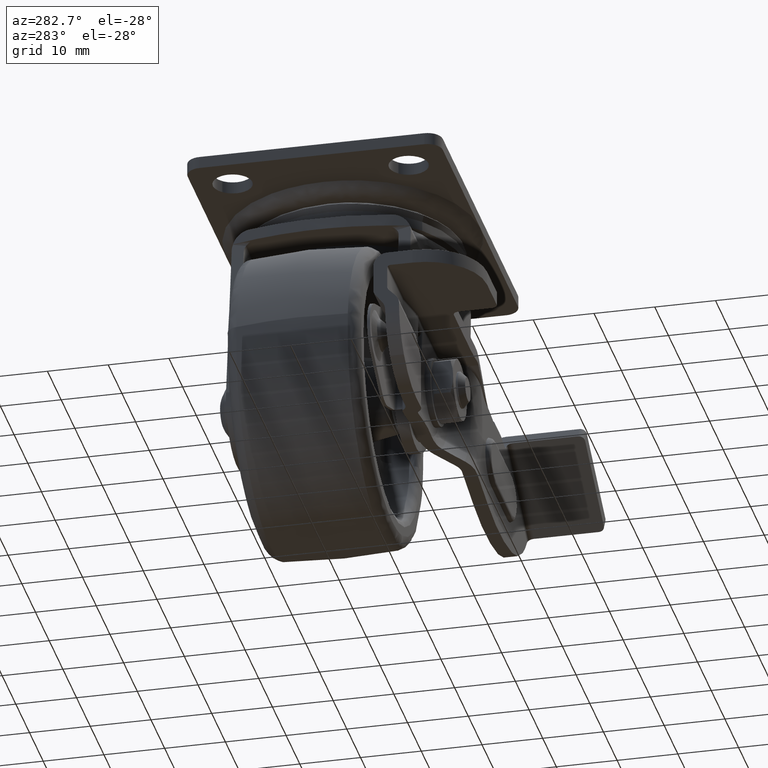
[diagram: clean part render]
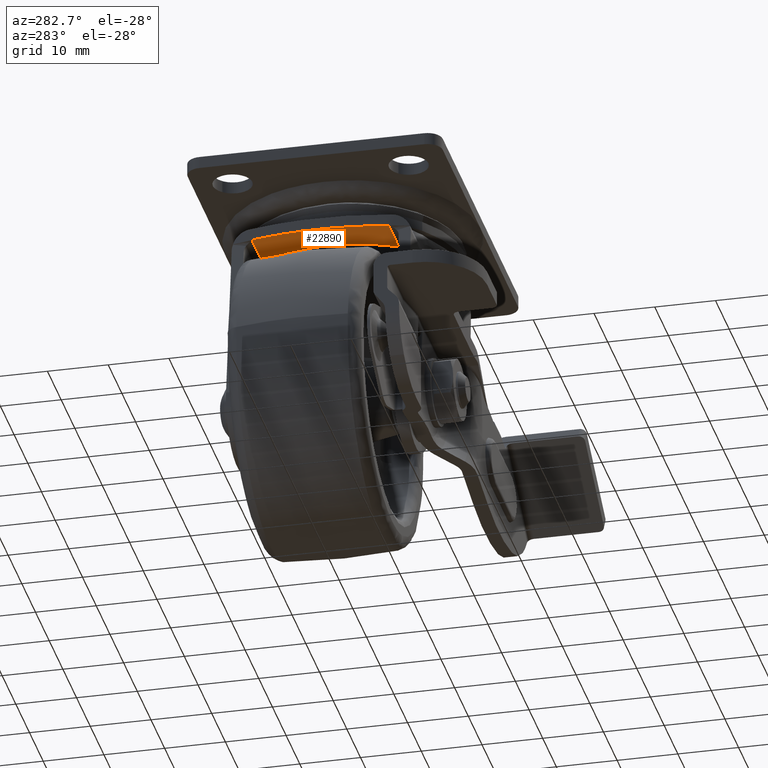
[diagram: same view with one face highlighted and labeled with its STEP entity id]
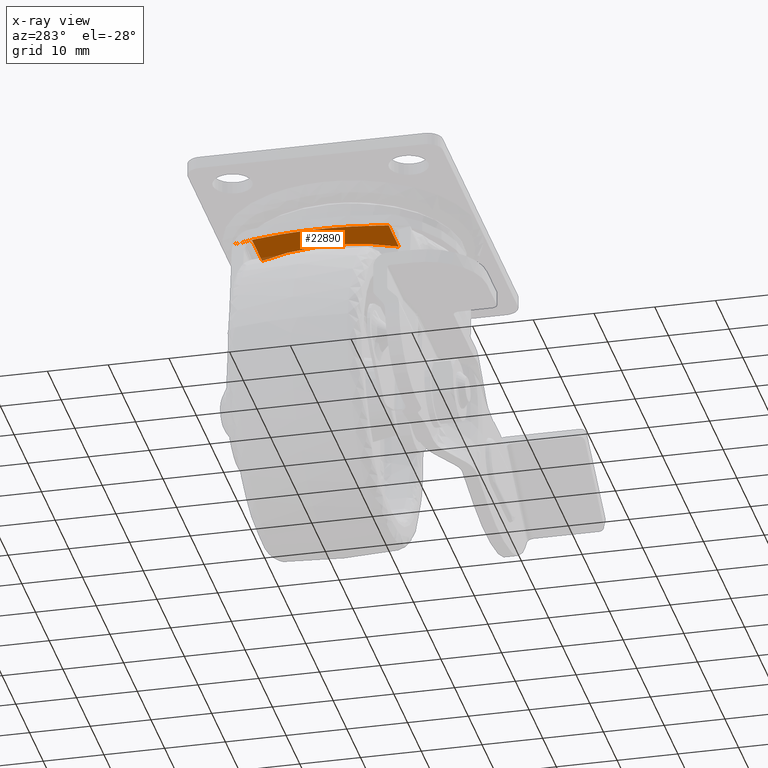
[diagram: x-ray of the same camera — body ghosted, the highlighted face saturated]
A machine part, auxiliary view. The second image highlights one B-rep face of the part: STEP entity #22890.
The next image is the same camera in x-ray: the body ghosted, the highlighted face saturated — about 1% of this face is hidden behind the body in this view.
In plain terms, the highlighted face is a freeform B-spline surface patch.
Its self-contained STEP definition (entity closure, byte-faithful):
#20269=CARTESIAN_POINT('',(-22.924576000856248,-14.581906124942041,-12.717472000000100));
#20270=VERTEX_POINT('',#20269);
#20298=CARTESIAN_POINT('',(-22.913844249973199,-14.581906124942041,-12.717472000000100));
#20299=VERTEX_POINT('',#20298);
#20300=CARTESIAN_POINT('',(-22.913844249973199,-14.581906124942041,-12.717472000000100));
#20301=CARTESIAN_POINT('',(-22.924576000856248,-14.581906124942041,-12.717472000000100));
#20302=QUASI_UNIFORM_CURVE('',1,(#20300,#20301),.UNSPECIFIED.,.F.,.U.);
#20303=EDGE_CURVE('',#20299,#20270,#20302,.T.);
#21128=CARTESIAN_POINT('',(-22.924576000856248,14.581906124942041,-12.717472000000100));
#21129=VERTEX_POINT('',#21128);
#21179=CARTESIAN_POINT('',(-22.913844297616201,14.581906124942041,-12.717472000000100));
#21180=VERTEX_POINT('',#21179);
#21189=CARTESIAN_POINT('',(-22.924576000856248,14.581906124942041,-12.717472000000100));
#21190=CARTESIAN_POINT('',(-22.913844297616201,14.581906124942041,-12.717472000000100));
#21191=QUASI_UNIFORM_CURVE('',1,(#21189,#21190),.UNSPECIFIED.,.F.,.U.);
#21192=EDGE_CURVE('',#21129,#21180,#21191,.T.);
#21290=CARTESIAN_POINT('',(-23.299805258138289,-12.917692562568950,-12.717472000000100));
#21291=VERTEX_POINT('',#21290);
#21292=CARTESIAN_POINT('',(-23.299805258138289,-12.917692562568950,-12.717472000000100));
#21293=CARTESIAN_POINT('',(-22.913844249973199,-14.581906124942041,-12.717472000000100));
#21294=QUASI_UNIFORM_CURVE('',1,(#21292,#21293),.UNSPECIFIED.,.F.,.U.);
#21295=EDGE_CURVE('',#21291,#20299,#21294,.T.);
#21297=CARTESIAN_POINT('',(-23.685766266303400,-11.253479000195860,-12.717472000000100));
#21298=VERTEX_POINT('',#21297);
#21299=CARTESIAN_POINT('',(-23.685766266303400,-11.253479000195860,-12.717472000000100));
#21300=CARTESIAN_POINT('',(-23.299805258138289,-12.917692562568950,-12.717472000000100));
#21301=QUASI_UNIFORM_CURVE('',1,(#21299,#21300),.UNSPECIFIED.,.F.,.U.);
#21302=EDGE_CURVE('',#21298,#21291,#21301,.T.);
#21355=CARTESIAN_POINT('',(-23.299805767906669,12.917692562568970,-12.717472000000100));
#21356=VERTEX_POINT('',#21355);
#21357=CARTESIAN_POINT('',(-23.685767238197151,11.253479000195860,-12.717472000000100));
#21358=VERTEX_POINT('',#21357);
#21359=CARTESIAN_POINT('',(-23.299805767906669,12.917692562568970,-12.717472000000100));
#21360=CARTESIAN_POINT('',(-23.685767238197151,11.253479000195860,-12.717472000000100));
#21361=QUASI_UNIFORM_CURVE('',1,(#21359,#21360),.UNSPECIFIED.,.F.,.U.);
#21362=EDGE_CURVE('',#21356,#21358,#21361,.T.);
#21364=CARTESIAN_POINT('',(-22.913844297616201,14.581906124942041,-12.717472000000100));
#21365=CARTESIAN_POINT('',(-23.299805767906669,12.917692562568970,-12.717472000000100));
#21366=QUASI_UNIFORM_CURVE('',1,(#21364,#21365),.UNSPECIFIED.,.F.,.U.);
#21367=EDGE_CURVE('',#21180,#21356,#21366,.T.);
#21420=CARTESIAN_POINT('',(-22.924576000856248,14.581906124942041,-12.717472000000100));
#21421=CARTESIAN_POINT('',(-23.681397323948449,11.995969520370060,-12.717472000000150));
#21422=CARTESIAN_POINT('',(-24.648302623718010,7.386103298831628,-12.717472000000020));
#21423=CARTESIAN_POINT('',(-25.136300935295029,0.540540975320678,-12.717472000000180));
#21424=CARTESIAN_POINT('',(-24.785513146962948,-6.624180825334513,-12.717472000000040));
#21425=CARTESIAN_POINT('',(-23.767969826724912,-11.700447842534500,-12.717472000000059));
#21426=CARTESIAN_POINT('',(-22.924576000856248,-14.581906124942041,-12.717472000000100));
#21427=B_SPLINE_CURVE_WITH_KNOTS('',3,(#21420,#21421,#21422,#21423,#21424,#21425,#21426),.UNSPECIFIED.,.F.,.U.,(4,1,1,1,4),(8.050989E-009,8.083203779111965,14.087870982565621,20.554427403777130,29.561430106047251),.UNSPECIFIED.);
#21428=EDGE_CURVE('',#21129,#20270,#21427,.T.);
#21469=CARTESIAN_POINT('',(-16.363739870272699,-11.253479000195860,-12.717472000000100));
#21470=VERTEX_POINT('',#21469);
#21471=CARTESIAN_POINT('',(-16.363739870272699,-11.253479000195860,-12.717472000000100));
#21472=CARTESIAN_POINT('',(-23.685766266303400,-11.253479000195860,-12.717472000000100));
#21473=QUASI_UNIFORM_CURVE('',1,(#21471,#21472),.UNSPECIFIED.,.F.,.U.);
#21474=EDGE_CURVE('',#21470,#21298,#21473,.T.);
#22216=CARTESIAN_POINT('',(-16.363739870272699,11.253479000195860,-12.717472000000100));
#22217=VERTEX_POINT('',#22216);
#22279=CARTESIAN_POINT('',(-23.685767238197151,11.253479000195860,-12.717472000000100));
#22280=CARTESIAN_POINT('',(-16.363739870272699,11.253479000195860,-12.717472000000100));
#22281=QUASI_UNIFORM_CURVE('',1,(#22279,#22280),.UNSPECIFIED.,.F.,.U.);
#22282=EDGE_CURVE('',#21358,#22217,#22281,.T.);
#22307=CARTESIAN_POINT('',(-16.363739870272699,11.253479000195860,-12.717472000000100));
#22308=CARTESIAN_POINT('',(-17.028269454164661,10.016423811669130,-12.717472000000130));
#22309=CARTESIAN_POINT('',(-18.064838133450159,7.593209400033850,-12.717472000000051));
#22310=CARTESIAN_POINT('',(-18.977106524388638,3.844804944288280,-12.717472000000180));
#22311=CARTESIAN_POINT('',(-19.308775648840570,-0.060193657636708,-12.717471999999971));
#22312=CARTESIAN_POINT('',(-18.987111091725161,-3.848068780630794,-12.717472000000180));
#22313=CARTESIAN_POINT('',(-18.016599502220082,-7.705907893048972,-12.717472000000010));
#22314=CARTESIAN_POINT('',(-17.028268214404392,-10.016424329870050,-12.717472000000210));
#22315=CARTESIAN_POINT('',(-16.363739870272699,-11.253479000195860,-12.717472000000100));
#22316=B_SPLINE_CURVE_WITH_KNOTS('',3,(#22307,#22308,#22309,#22310,#22311,#22312,#22313,#22314,#22315),.UNSPECIFIED.,.F.,.U.,(4,1,1,1,1,1,4),(0.000000030597676,4.212715975386661,7.875965671243709,11.539209893288870,15.935068089742860,19.231978992364859,23.444698043645310),.UNSPECIFIED.);
#22317=EDGE_CURVE('',#22217,#21470,#22316,.T.);
#22873=CARTESIAN_POINT('',(-15.931653948031981,-16.038638764067631,-12.717472000000100));
#22874=CARTESIAN_POINT('',(-25.446176440489911,-16.038638764067631,-12.717472000000100));
#22875=CARTESIAN_POINT('',(-15.931653948031981,16.038639285557231,-12.717472000000100));
#22876=CARTESIAN_POINT('',(-25.446176440489911,16.038639285557231,-12.717472000000100));
#22877=B_SPLINE_SURFACE_WITH_KNOTS('',1,1,((#22873,#22875),(#22874,#22876)),.UNSPECIFIED.,.F.,.F.,.U.,(2,2),(2,2),(0.0,9.514522492457930),(0.0,32.077278049624859),.UNSPECIFIED.);
#22878=ORIENTED_EDGE('',*,*,#21302,.T.);
#22879=ORIENTED_EDGE('',*,*,#21295,.T.);
#22880=ORIENTED_EDGE('',*,*,#20303,.T.);
#22881=ORIENTED_EDGE('',*,*,#21428,.F.);
#22882=ORIENTED_EDGE('',*,*,#21192,.T.);
#22883=ORIENTED_EDGE('',*,*,#21367,.T.);
#22884=ORIENTED_EDGE('',*,*,#21362,.T.);
#22885=ORIENTED_EDGE('',*,*,#22282,.T.);
#22886=ORIENTED_EDGE('',*,*,#22317,.T.);
#22887=ORIENTED_EDGE('',*,*,#21474,.T.);
#22888=EDGE_LOOP('',(#22878,#22879,#22880,#22881,#22882,#22883,#22884,#22885,#22886,#22887));
#22889=FACE_OUTER_BOUND('',#22888,.T.);
#22890=ADVANCED_FACE('',(#22889),#22877,.T.);